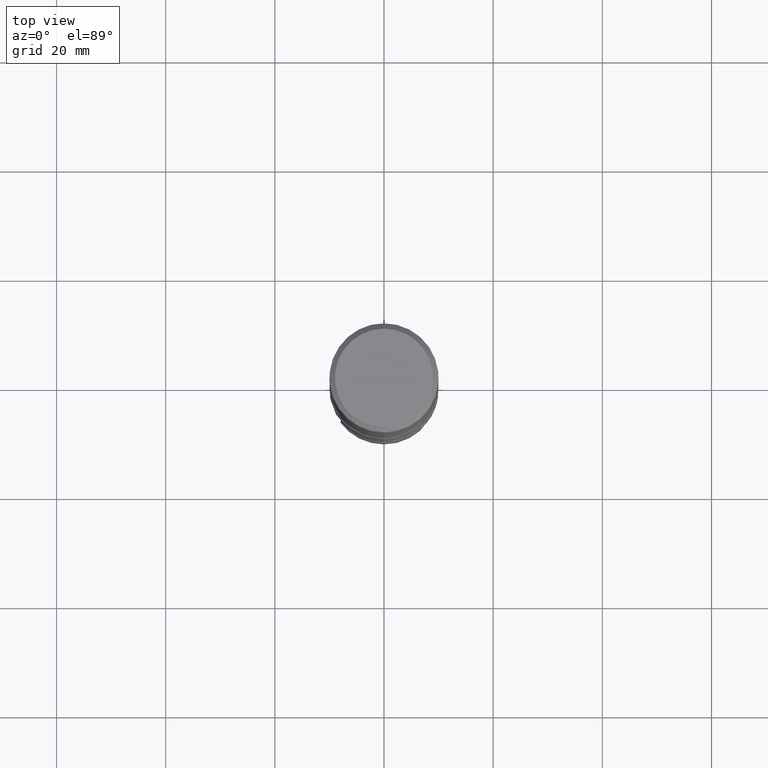
[diagram: clean part render]
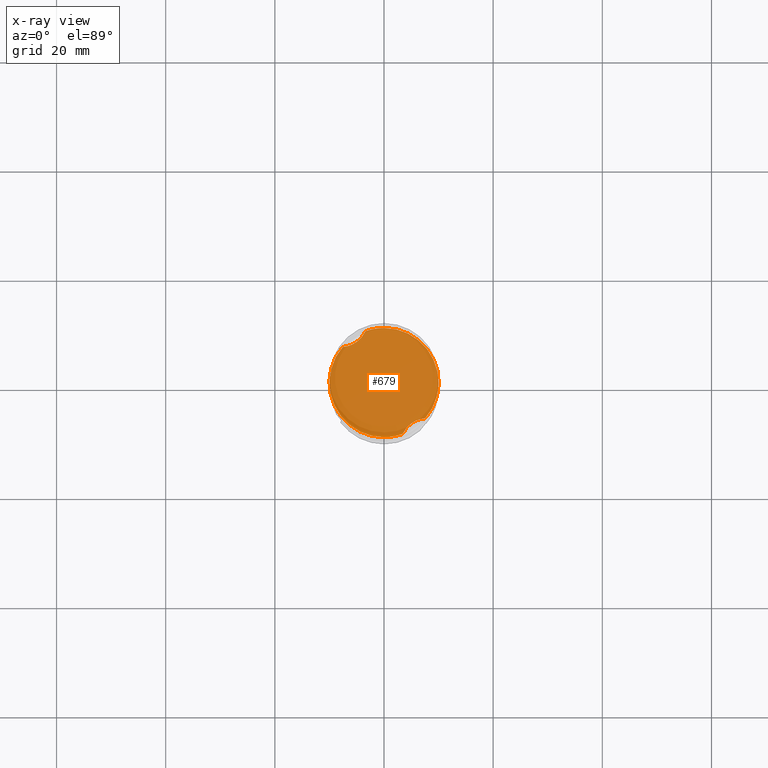
[diagram: x-ray — body ghosted, one internal face saturated and labeled with its STEP entity id]
A machine part, top view, then the same camera in x-ray: the body is ghosted and one INTERNAL B-rep face — a face not visible from any outside direction — is saturated and labeled: STEP entity #679.
In plain terms, the highlighted planar face has unit normal (-0, 0, 1).
Its self-contained STEP definition (entity closure, byte-faithful):
#325=VERTEX_POINT('',#784);
#329=VERTEX_POINT('',#788);
#333=EDGE_CURVE('',#325,#329,#792,.T.);
#407=VERTEX_POINT('',#875);
#501=VERTEX_POINT('',#974);
#527=EDGE_CURVE('',#325,#579,#1004,.T.);
#539=EDGE_CURVE('',#573,#501,#1016,.T.);
#553=EDGE_CURVE('',#573,#407,#1030,.T.);
#557=EDGE_CURVE('',#501,#579,#1035,.T.);
#573=VERTEX_POINT('',#1053);
#579=VERTEX_POINT('',#1059);
#601=EDGE_CURVE('',#329,#407,#1085,.T.);
#679=ADVANCED_FACE('',(#1169),#1170,.T.);
#784=CARTESIAN_POINT('',(-3.40156588587114,9.4035817396393,-52.0));
#788=CARTESIAN_POINT('',(-1.22455901755798E-015,9.9999,-52.0));
#792=CIRCLE('',#2708,9.9999);
#875=CARTESIAN_POINT('',(7.57965581687476,-6.52279217112707,-52.0));
#974=CARTESIAN_POINT('',(1.22459335947124E-015,-9.9999,-52.0));
#1004=B_SPLINE_CURVE_WITH_KNOTS('',3,(#3697,#3698,#3699,#3700,#3701,#3702,#3703,#3704,#3705,#3706),.UNSPECIFIED.,.F.,.F.,(4,2,2,2,4),(0.0,2.16395839034027,4.14646156609759,6.15232863065058,8.5716646031607),.UNSPECIFIED.);
#1016=CIRCLE('',#3833,9.9999);
#1030=B_SPLINE_CURVE_WITH_KNOTS('',3,(#3937,#3938,#3939,#3940,#3941,#3942,#3943,#3944,#3945,#3946),.UNSPECIFIED.,.F.,.F.,(4,2,2,2,4),(0.0,2.1639583903402,4.14646156609761,6.15232863065069,8.57166460316079),.UNSPECIFIED.);
#1035=CIRCLE('',#4777,9.9999);
#1053=CARTESIAN_POINT('',(3.40156588587115,-9.40358173963929,-52.0));
#1059=CARTESIAN_POINT('',(-7.57965581687476,6.52279217112707,-52.0));
#1085=CIRCLE('',#4876,9.9999);
#1169=FACE_OUTER_BOUND('',#5302,.T.);
#1170=PLANE('',#5303);
#2708=AXIS2_PLACEMENT_3D('',#5414,#5415,#5416);
#3697=CARTESIAN_POINT('',(-3.13559966963793,10.0499,-52.0));
#3698=CARTESIAN_POINT('',(-3.36967339680816,9.36761614514502,-52.0));
#3699=CARTESIAN_POINT('',(-3.72374993972665,8.73811226251895,-51.9999999999744));
#3700=CARTESIAN_POINT('',(-4.63893676399929,7.70629872900427,-51.9999999999744));
#3701=CARTESIAN_POINT('',(-5.16439306138621,7.30771422867608,-52.0000000000015));
#3702=CARTESIAN_POINT('',(-6.35806823629309,6.73002974832808,-52.0000000000015));
#3703=CARTESIAN_POINT('',(-7.00659289976633,6.56372736950214,-52.0000000000002));
#3704=CARTESIAN_POINT('',(-8.47582418481288,6.45678831621299,-52.0000000000002));
#3705=CARTESIAN_POINT('',(-9.28190431684822,6.57073339706725,-52.0));
#3706=CARTESIAN_POINT('',(-10.0499,6.82095738883622,-52.0));
#3833=AXIS2_PLACEMENT_3D('',#5626,#5627,#5628);
#3937=CARTESIAN_POINT('',(3.13559966963794,-10.0499,-52.0));
#3938=CARTESIAN_POINT('',(3.36967339680816,-9.36761614514505,-52.0));
#3939=CARTESIAN_POINT('',(3.72374993972665,-8.73811226251896,-51.9999999999744));
#3940=CARTESIAN_POINT('',(4.63893676399934,-7.70629872900423,-51.9999999999744));
#3941=CARTESIAN_POINT('',(5.16439306138624,-7.30771422867608,-52.0000000000014));
#3942=CARTESIAN_POINT('',(6.35806823629308,-6.7300297483281,-52.0000000000014));
#3943=CARTESIAN_POINT('',(7.00659289976628,-6.56372736950215,-52.0000000000002));
#3944=CARTESIAN_POINT('',(8.47582418481293,-6.45678831621298,-52.0000000000002));
#3945=CARTESIAN_POINT('',(9.2819043168483,-6.57073339706729,-52.0));
#3946=CARTESIAN_POINT('',(10.0499,-6.82095738883624,-52.0));
#4777=AXIS2_PLACEMENT_3D('',#5639,#5640,#5641);
#4876=AXIS2_PLACEMENT_3D('',#5733,#5734,#5735);
#5302=EDGE_LOOP('',(#5828,#5829,#5830,#5831,#5832,#5833));
#5303=AXIS2_PLACEMENT_3D('',#5834,#5835,#5836);
#5414=CARTESIAN_POINT('',(0.0,0.0,-52.0));
#5415=DIRECTION('',(0.0,0.0,-1.0));
#5416=DIRECTION('',(0.0,1.0,0.0));
#5626=CARTESIAN_POINT('',(0.0,0.0,-52.0));
#5627=DIRECTION('',(0.0,0.0,-1.0));
#5628=DIRECTION('',(0.0,1.0,0.0));
#5639=CARTESIAN_POINT('',(0.0,0.0,-52.0));
#5640=DIRECTION('',(0.0,0.0,-1.0));
#5641=DIRECTION('',(0.0,1.0,0.0));
#5733=CARTESIAN_POINT('',(0.0,0.0,-52.0));
#5734=DIRECTION('',(0.0,0.0,-1.0));
#5735=DIRECTION('',(0.0,1.0,0.0));
#5828=ORIENTED_EDGE('',*,*,#553,.T.);
#5829=ORIENTED_EDGE('',*,*,#601,.F.);
#5830=ORIENTED_EDGE('',*,*,#333,.F.);
#5831=ORIENTED_EDGE('',*,*,#527,.T.);
#5832=ORIENTED_EDGE('',*,*,#557,.F.);
#5833=ORIENTED_EDGE('',*,*,#539,.F.);
#5834=CARTESIAN_POINT('',(0.0,4.99995,-52.0));
#5835=DIRECTION('',(-0.0,0.0,1.0));
#5836=DIRECTION('',(0.0,-1.0,0.0));